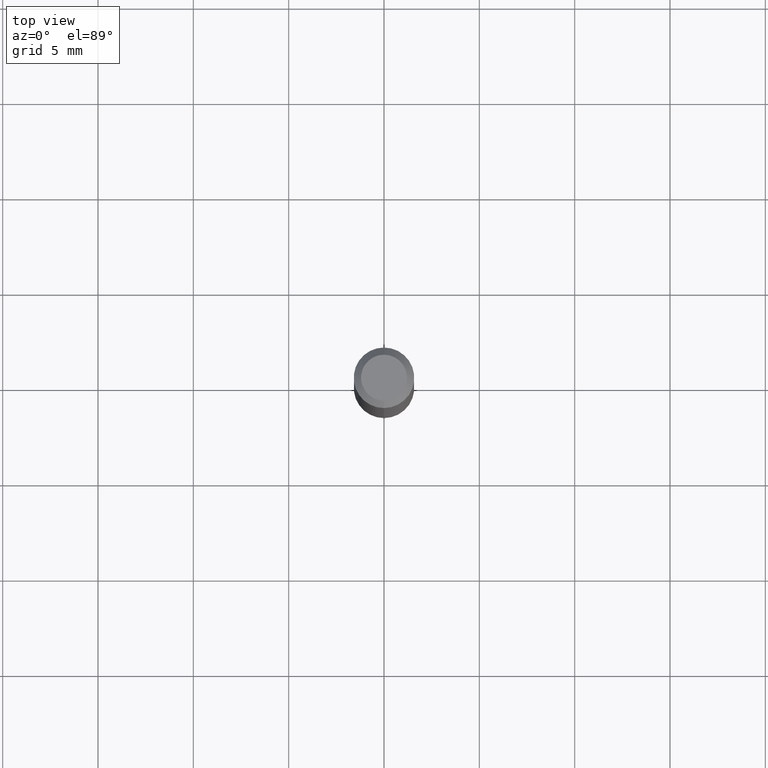
[diagram: clean part render]
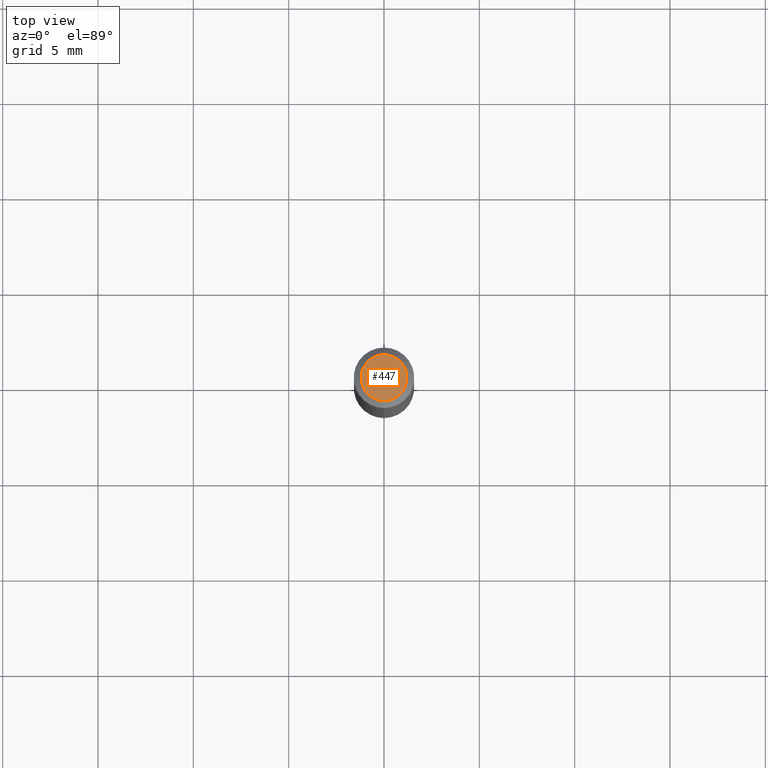
[diagram: same view with one face highlighted and labeled with its STEP entity id]
A machine part, top view. The second image highlights one B-rep face of the part: STEP entity #447.
In plain terms, the highlighted planar face has unit normal (0, -0, -1).
Its self-contained STEP definition (entity closure, byte-faithful):
#7 = CIRCLE ( 'NONE', #328, 0.04749999999999999362 ) ;
#51 = CARTESIAN_POINT ( 'NONE',  ( 3.316907271900976096E-16, 0.04749999999999999362, -3.299190962427591539E-16 ) ) ;
#55 = DIRECTION ( 'NONE',  ( -2.445461197207060331E-29, 3.491492235332826977E-15, 1.000000000000000000 ) ) ;
#138 = ORIENTED_EDGE ( 'NONE', *, *, #229, .T. ) ;
#177 = CARTESIAN_POINT ( 'NONE',  ( 8.024693618822424487E-45, -1.145720712847239897E-30, -3.281464301288998417E-16 ) ) ;
#180 = EDGE_CURVE ( 'NONE', #408, #242, #7, .T. ) ;
#181 = CARTESIAN_POINT ( 'NONE',  ( 3.840629472727447874E-16, 0.04749999999999999362, -4.939923113072091241E-16 ) ) ;
#229 = EDGE_CURVE ( 'NONE', #242, #408, #487, .T. ) ;
#235 = FACE_OUTER_BOUND ( 'NONE', #347, .T. ) ;
#242 = VERTEX_POINT ( 'NONE', #425 ) ;
#243 = PLANE ( 'NONE',  #260 ) ;
#256 = DIRECTION ( 'NONE',  ( -2.445461197207060331E-29, 3.491492235332826977E-15, 1.000000000000000000 ) ) ;
#260 = AXIS2_PLACEMENT_3D ( 'NONE', #51, #443, #287 ) ;
#287 = DIRECTION ( 'NONE',  ( 6.982962677686265922E-15, 1.000000000000000000, -3.491492235332826977E-15 ) ) ;
#328 = AXIS2_PLACEMENT_3D ( 'NONE', #417, #55, #332 ) ;
#332 = DIRECTION ( 'NONE',  ( -6.982962677686266711E-15, -1.000000000000000000, 3.491492235332826977E-15 ) ) ;
#338 = AXIS2_PLACEMENT_3D ( 'NONE', #177, #256, #341 ) ;
#341 = DIRECTION ( 'NONE',  ( -6.982962677686266711E-15, -1.000000000000000000, 3.491492235332826977E-15 ) ) ;
#347 = EDGE_LOOP ( 'NONE', ( #477, #138 ) ) ;
#408 = VERTEX_POINT ( 'NONE', #181 ) ;
#417 = CARTESIAN_POINT ( 'NONE',  ( 8.024693618822424487E-45, -1.145720712847239897E-30, -3.281464301288998417E-16 ) ) ;
#425 = CARTESIAN_POINT ( 'NONE',  ( -3.773273898774340269E-16, -0.04749999999999999362, -1.623005489505905840E-16 ) ) ;
#443 = DIRECTION ( 'NONE',  ( 2.445461197207060051E-29, -3.491492235332826977E-15, -1.000000000000000000 ) ) ;
#447 = ADVANCED_FACE ( 'NONE', ( #235 ), #243, .F. ) ;
#477 = ORIENTED_EDGE ( 'NONE', *, *, #180, .T. ) ;
#487 = CIRCLE ( 'NONE', #338, 0.04749999999999999362 ) ;